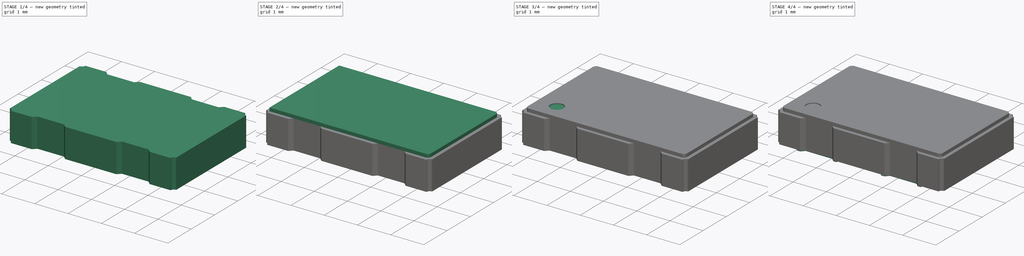
[diagram: build sequence overview — one tinted view per stage of 4, left to right]
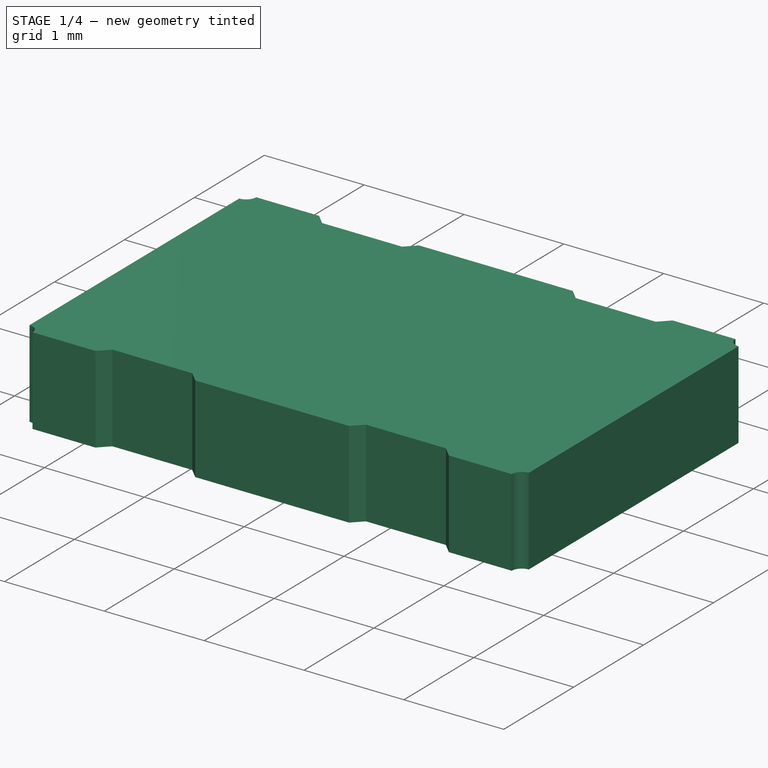
[diagram: stage 1 of 4 — iso view after this stage's code; geometry added in this stage tinted green]
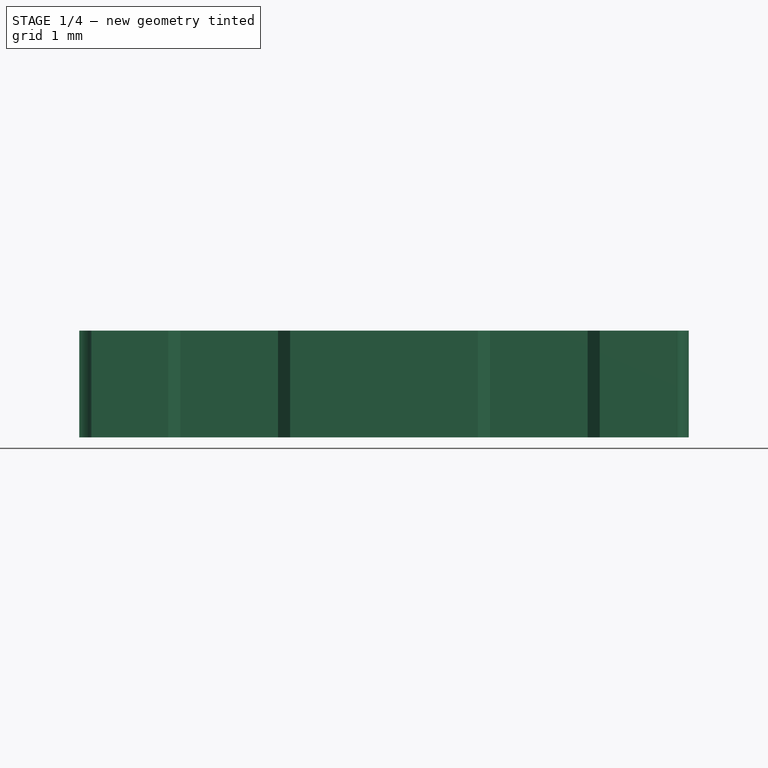
[diagram: stage 1 of 4 — front view after this stage's code; geometry added in this stage tinted green]
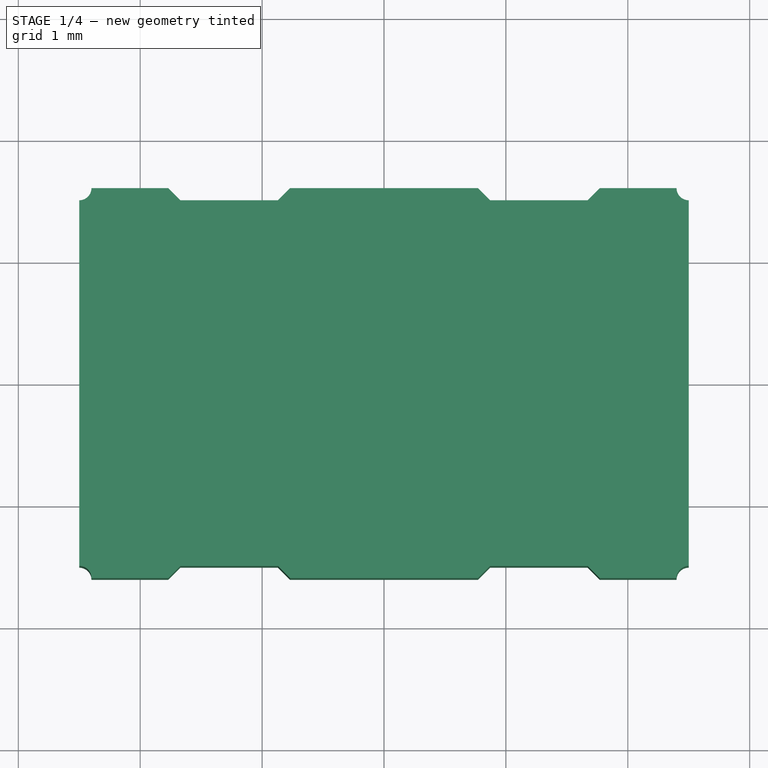
[diagram: stage 1 of 4 — top view after this stage's code; geometry added in this stage tinted green]
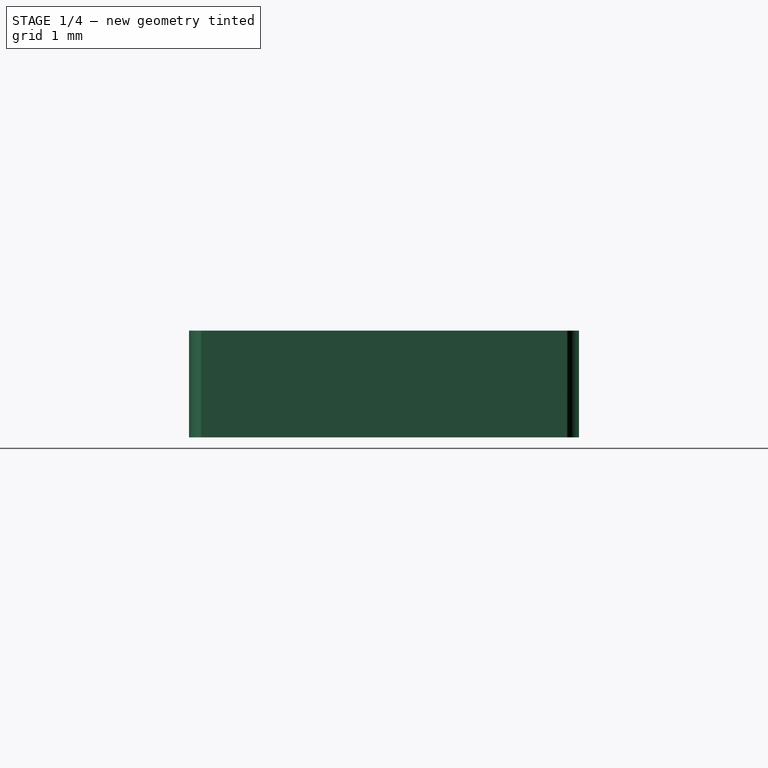
[diagram: stage 1 of 4 — right view after this stage's code; geometry added in this stage tinted green]
FCSTD DOCUMENT  (FreeCAD 0.15R4671 (Git))
Label: XO53
License: All rights reserved
LicenseURL: http://en.wikipedia.org/wiki/All_rights_reserved
objects: Sketcher::SketchObject×5, PartDesign::Pad×4, PartDesign::Fillet×4, PartDesign::Pocket×1, Part::MultiFuse×1
note: 20 computed .brp shape members not serialized (recipe doc carries the construction recipe); baked Part::Feature solids carry a one-line shape summary decoded from their .brp

FEATURE [PartDesign::Pad] Pad  label="Body"
  Length = 0.85
  Length2 = 100
  Placement = pos=(0,0,0.025) rot=(0,0,1;0rad)
  Sketch = -> Sketch
  Type = 0
FEATURE [Sketcher::SketchObject] Sketch006
  Placement = pos=(0,0,0.875) rot=(0,0,1;0rad)
  sketch-geometry (32):
    g0: LineSegment [constr] StartX=-2.5 StartY=1.6 StartZ=0 EndX=2.5 EndY=1.6 EndZ=0
    g1: LineSegment [constr] StartX=2.5 StartY=1.6 StartZ=0 EndX=2.5 EndY=-1.6 EndZ=0
    g2: LineSegment [constr] StartX=2.5 StartY=-1.6 StartZ=0 EndX=-2.5 EndY=-1.6 EndZ=0
    g3: LineSegment [constr] StartX=-2.5 StartY=-1.6 StartZ=0 EndX=-2.5 EndY=1.6 EndZ=0
    g4: LineSegment [constr] StartX=-2.5 StartY=-1.6 StartZ=0 EndX=-1.77 EndY=-1.6 EndZ=0
    g5: LineSegment StartX=-1.77 StartY=-1.6 StartZ=0 EndX=-1.67 EndY=-1.5 EndZ=0
    g6: LineSegment StartX=-1.67 StartY=-1.5 StartZ=0 EndX=-0.87 EndY=-1.5 EndZ=0
    g7: LineSegment StartX=-0.87 StartY=-1.5 StartZ=0 EndX=-0.77 EndY=-1.6 EndZ=0
    g8: LineSegment StartX=-0.77 StartY=-1.6 StartZ=0 EndX=0.77 EndY=-1.6 EndZ=0
    g9: LineSegment StartX=0.77 StartY=-1.6 StartZ=0 EndX=0.87 EndY=-1.5 EndZ=0
    g10: LineSegment StartX=0.87 StartY=-1.5 StartZ=0 EndX=1.67 EndY=-1.5 EndZ=0
    g11: LineSegment StartX=1.67 StartY=-1.5 StartZ=0 EndX=1.77 EndY=-1.6 EndZ=0
    g12: LineSegment [constr] StartX=1.77 StartY=-1.6 StartZ=0 EndX=2.5 EndY=-1.6 EndZ=0
    g13: LineSegment [constr] StartX=-2.5 StartY=1.6 StartZ=0 EndX=-1.77 EndY=1.6 EndZ=0
    g14: LineSegment StartX=-1.77 StartY=1.6 StartZ=0 EndX=-1.67 EndY=1.5 EndZ=0
    g15: LineSegment StartX=-1.67 StartY=1.5 StartZ=0 EndX=-0.87 EndY=1.5 EndZ=0
    g16: LineSegment StartX=-0.87 StartY=1.5 StartZ=0 EndX=-0.77 EndY=1.6 EndZ=0
    g17: LineSegment StartX=-0.77 StartY=1.6 StartZ=0 EndX=0.77 EndY=1.6 EndZ=0
    g18: LineSegment StartX=0.77 StartY=1.6 StartZ=0 EndX=0.87 EndY=1.5 EndZ=0
    g19: LineSegment StartX=0.87 StartY=1.5 StartZ=0 EndX=1.67 EndY=1.5 EndZ=0
    g20: LineSegment StartX=1.67 StartY=1.5 StartZ=0 EndX=1.77 EndY=1.6 EndZ=0
    g21: LineSegment [constr] StartX=1.77 StartY=1.6 StartZ=0 EndX=2.5 EndY=1.6 EndZ=0
    g22: ArcOfCircle CenterX=-2.5 CenterY=1.6 CenterZ=0 NormalX=0 NormalY=0 NormalZ=1 Radius=0.1 StartAngle=4.71239 EndAngle=6.28319
    g23: ArcOfCircle CenterX=2.5 CenterY=1.6 CenterZ=0 NormalX=0 NormalY=0 NormalZ=1 Radius=0.1 StartAngle=3.14159 EndAngle=4.71239
    g24: ArcOfCircle CenterX=2.5 CenterY=-1.6 CenterZ=0 NormalX=0 NormalY=0 NormalZ=1 Radius=0.1 StartAngle=1.5708 EndAngle=3.14159
    g25: ArcOfCircle CenterX=-2.5 CenterY=-1.6 CenterZ=0 NormalX=0 NormalY=0 NormalZ=1 Radius=0.1 StartAngle=0 EndAngle=1.5708
    g26: LineSegment StartX=-2.5 StartY=1.5 StartZ=0 EndX=-2.5 EndY=-1.5 EndZ=0
    g27: LineSegment StartX=2.5 StartY=-1.5 StartZ=0 EndX=2.5 EndY=1.5 EndZ=0
    g28: LineSegment StartX=-2.4 StartY=1.6 StartZ=0 EndX=-1.77 EndY=1.6 EndZ=0
    g29: LineSegment StartX=-2.4 StartY=-1.6 StartZ=0 EndX=-1.77 EndY=-1.6 EndZ=0
    g30: LineSegment StartX=1.77 StartY=-1.6 StartZ=0 EndX=2.4 EndY=-1.6 EndZ=0
    g31: LineSegment StartX=1.77 StartY=1.6 StartZ=0 EndX=2.4 EndY=1.6 EndZ=0
  constraints (92):
    c: Coincident(g0,g1)
    c: Coincident(g1,g2)
    c: Coincident(g2,g3)
    c: Coincident(g3,g0)
    c: Vertical(g1)
    c: Vertical(g3)
    c: Distance(g0) = 5
    c: Distance(g3) = 3.2
    c: DistanceY(g-1,g0) = 1.6
    c: DistanceX(g-2,g0) = 2.5
    c: Coincident(g2,g4)
    c: PointOnObject(g4,g2)
    c: Horizontal(g4)
    c: Coincident(g4,g5)
    c: Coincident(g5,g6)
    c: Horizontal(g6)
    c: Coincident(g6,g7)
    c: PointOnObject(g7,g2)
    c: Coincident(g7,g8)
    c: PointOnObject(g8,g2)
    c: Coincident(g8,g9)
    c: Coincident(g9,g10)
    c: Horizontal(g10)
    c: Coincident(g10,g11)
    c: PointOnObject(g11,g2)
    c: Coincident(g11,g12)
    c: Coincident(g12,g1)
    c: Equal(g5,g7)
    c: Equal(g7,g9)
    c: Equal(g9,g11)
    c: Equal(g6,g10)
    c: Angle(g5,g6) = 2.35619
    c: Distance(g4,g7) = 1
    c: Angle(g9,g10) = 2.35619
    c: Distance(g9,g2) = 0.1
    c: Distance(g7,g8) = 1.54
    c: DistanceX(g-2,g7) = -0.77
    c: Coincident(g0,g13)
    c: Horizontal(g13)
    c: Coincident(g13,g14)
    c: Coincident(g14,g15)
    c: Horizontal(g15)
    c: Coincident(g15,g16)
    c: PointOnObject(g16,g0)
    c: Coincident(g16,g17)
    c: PointOnObject(g17,g0)
    c: Horizontal(g17)
    c: Coincident(g17,g18)
    c: Coincident(g18,g19)
    c: Horizontal(g19)
    c: Coincident(g19,g20)
    c: PointOnObject(g20,g0)
    c: Coincident(g20,g21)
    c: Coincident(g21,g0)
    c: Equal(g13,g21)
    c: Equal(g14,g16)
    c: Equal(g16,g18)
    c: Equal(g18,g20)
    c: Angle(g15,g14) = 2.35619
    c: Angle(g19,g18) = 2.35619
    c: Equal(g15,g19)
    c: Distance(g14,g0) = 0.1
    c: Distance(g16,g17) = 1.54
    c: Coincident(g22,g0)
    c: PointOnObject(g22,g3)
    c: PointOnObject(g22,g0)
    c: Distance(g0,g22) = 0.1
    c: Coincident(g23,g0)
    c: PointOnObject(g23,g0)
    c: PointOnObject(g23,g1)
    c: Distance(g23,g0) = 0.1
    c: Coincident(g24,g1)
    c: PointOnObject(g24,g2)
    c: PointOnObject(g24,g1)
    c: Distance(g1,g24) = 0.1
    c: Coincident(g25,g2)
    c: PointOnObject(g25,g3)
    c: PointOnObject(g25,g2)
    c: Distance(g25,g2) = 0.1
    c: Distance(g13,g16) = 1
    c: Coincident(g26,g22)
    c: Coincident(g26,g25)
    c: Coincident(g27,g24)
    c: Coincident(g27,g23)
    c: Coincident(g28,g22)
    c: Coincident(g28,g13)
    c: Coincident(g29,g25)
    c: Coincident(g29,g4)
    c: Coincident(g30,g11)
    c: Coincident(g30,g24)
    c: Coincident(g31,g20)
    c: Coincident(g31,g23)
FEATURE [PartDesign::Pad] Pad004  label="BodyCover"
  Length = 0.025
  Length2 = 100
  Placement = pos=(0,0,0.875) rot=(0,0,1;0rad)
  Sketch = -> Sketch006
  Type = 0
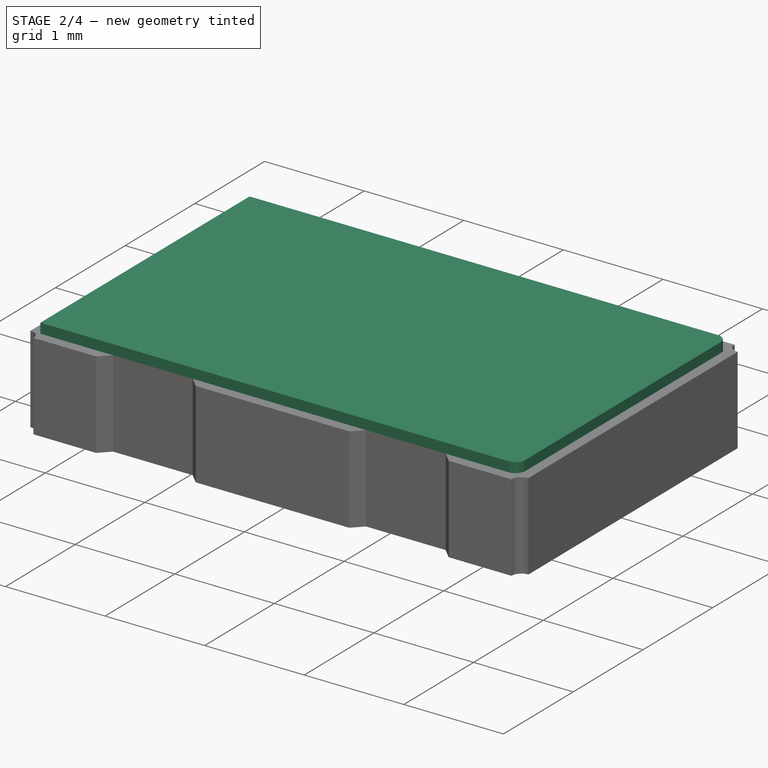
[diagram: stage 2 of 4 — iso view after this stage's code; geometry added in this stage tinted green]
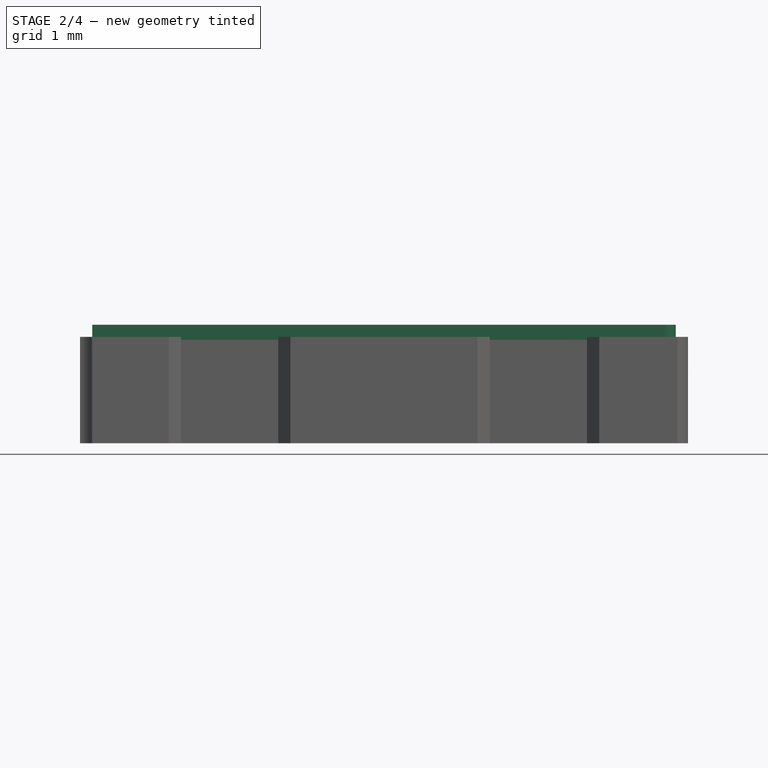
[diagram: stage 2 of 4 — front view after this stage's code; geometry added in this stage tinted green]
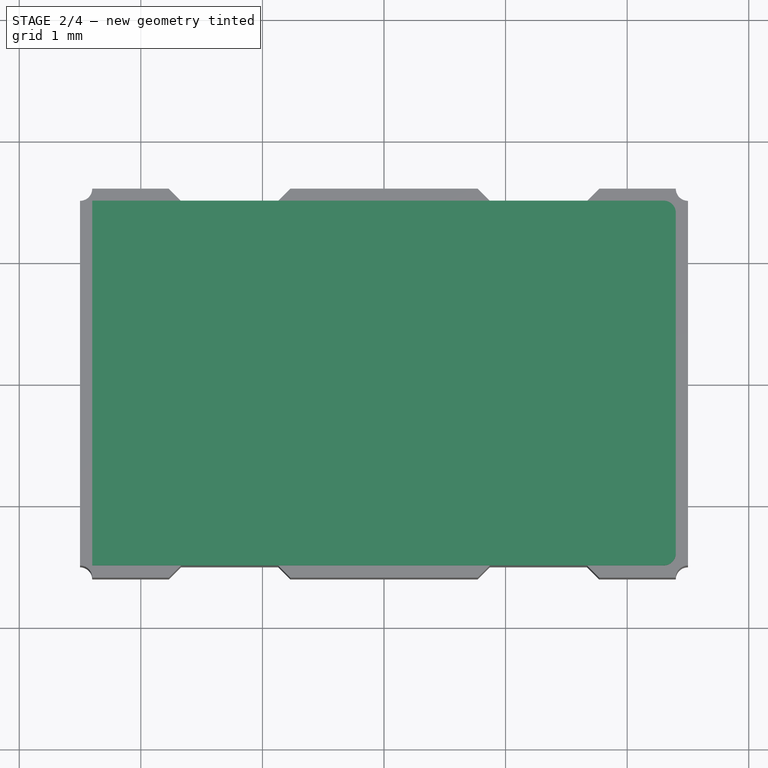
[diagram: stage 2 of 4 — top view after this stage's code; geometry added in this stage tinted green]
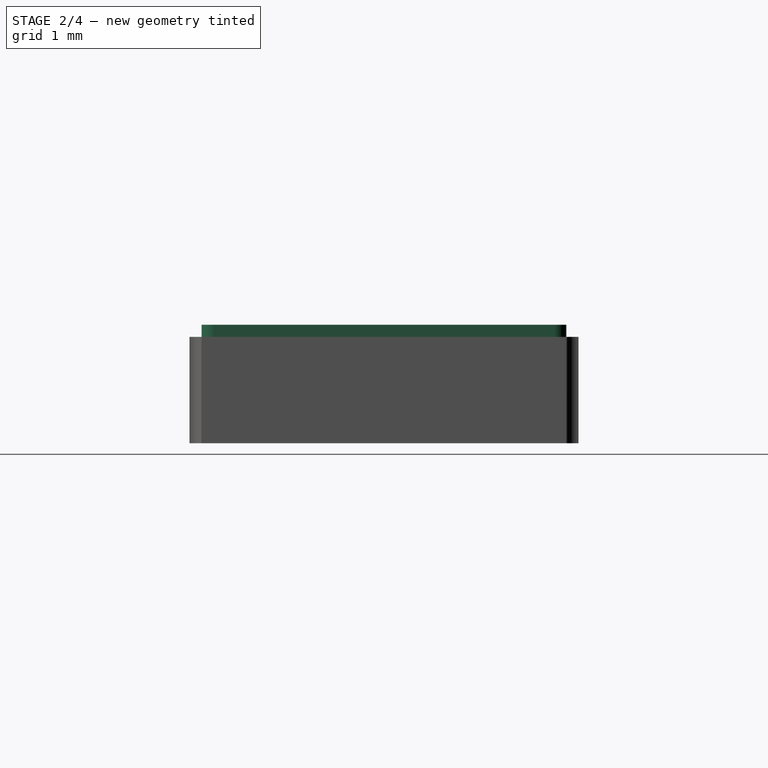
[diagram: stage 2 of 4 — right view after this stage's code; geometry added in this stage tinted green]
FEATURE [Sketcher::SketchObject] Sketch
  Placement = pos=(0,0,0.025) rot=(0,0,1;0rad)
  sketch-geometry (32):
    g0: LineSegment [constr] StartX=-2.5 StartY=1.6 StartZ=0 EndX=2.5 EndY=1.6 EndZ=0
    g1: LineSegment [constr] StartX=2.5 StartY=1.6 StartZ=0 EndX=2.5 EndY=-1.6 EndZ=0
    g2: LineSegment [constr] StartX=2.5 StartY=-1.6 StartZ=0 EndX=-2.5 EndY=-1.6 EndZ=0
    g3: LineSegment [constr] StartX=-2.5 StartY=-1.6 StartZ=0 EndX=-2.5 EndY=1.6 EndZ=0
    g4: LineSegment [constr] StartX=-2.5 StartY=-1.6 StartZ=0 EndX=-1.77 EndY=-1.6 EndZ=0
    g5: LineSegment StartX=-1.77 StartY=-1.6 StartZ=0 EndX=-1.67 EndY=-1.5 EndZ=0
    g6: LineSegment StartX=-1.67 StartY=-1.5 StartZ=0 EndX=-0.87 EndY=-1.5 EndZ=0
    g7: LineSegment StartX=-0.87 StartY=-1.5 StartZ=0 EndX=-0.77 EndY=-1.6 EndZ=0
    g8: LineSegment StartX=-0.77 StartY=-1.6 StartZ=0 EndX=0.77 EndY=-1.6 EndZ=0
    g9: LineSegment StartX=0.77 StartY=-1.6 StartZ=0 EndX=0.87 EndY=-1.5 EndZ=0
    g10: LineSegment StartX=0.87 StartY=-1.5 StartZ=0 EndX=1.67 EndY=-1.5 EndZ=0
    g11: LineSegment StartX=1.67 StartY=-1.5 StartZ=0 EndX=1.77 EndY=-1.6 EndZ=0
    g12: LineSegment [constr] StartX=1.77 StartY=-1.6 StartZ=0 EndX=2.5 EndY=-1.6 EndZ=0
    g13: LineSegment [constr] StartX=-2.5 StartY=1.6 StartZ=0 EndX=-1.77 EndY=1.6 EndZ=0
    g14: LineSegment StartX=-1.77 StartY=1.6 StartZ=0 EndX=-1.67 EndY=1.5 EndZ=0
    g15: LineSegment StartX=-1.67 StartY=1.5 StartZ=0 EndX=-0.87 EndY=1.5 EndZ=0
    g16: LineSegment StartX=-0.87 StartY=1.5 StartZ=0 EndX=-0.77 EndY=1.6 EndZ=0
    g17: LineSegment StartX=-0.77 StartY=1.6 StartZ=0 EndX=0.77 EndY=1.6 EndZ=0
    g18: LineSegment StartX=0.77 StartY=1.6 StartZ=0 EndX=0.87 EndY=1.5 EndZ=0
    g19: LineSegment StartX=0.87 StartY=1.5 StartZ=0 EndX=1.67 EndY=1.5 EndZ=0
    g20: LineSegment StartX=1.67 StartY=1.5 StartZ=0 EndX=1.77 EndY=1.6 EndZ=0
    g21: LineSegment [constr] StartX=1.77 StartY=1.6 StartZ=0 EndX=2.5 EndY=1.6 EndZ=0
    g22: ArcOfCircle CenterX=-2.5 CenterY=1.6 CenterZ=0 NormalX=0 NormalY=0 NormalZ=1 Radius=0.1 StartAngle=4.71239 EndAngle=6.28319
    g23: ArcOfCircle CenterX=2.5 CenterY=1.6 CenterZ=0 NormalX=0 NormalY=0 NormalZ=1 Radius=0.1 StartAngle=3.14159 EndAngle=4.71239
    g24: ArcOfCircle CenterX=2.5 CenterY=-1.6 CenterZ=0 NormalX=0 NormalY=0 NormalZ=1 Radius=0.1 StartAngle=1.5708 EndAngle=3.14159
    g25: ArcOfCircle CenterX=-2.5 CenterY=-1.6 CenterZ=0 NormalX=0 NormalY=0 NormalZ=1 Radius=0.1 StartAngle=0 EndAngle=1.5708
    g26: LineSegment StartX=-2.5 StartY=1.5 StartZ=0 EndX=-2.5 EndY=-1.5 EndZ=0
    g27: LineSegment StartX=2.5 StartY=-1.5 StartZ=0 EndX=2.5 EndY=1.5 EndZ=0
    g28: LineSegment StartX=-2.4 StartY=1.6 StartZ=0 EndX=-1.77 EndY=1.6 EndZ=0
    g29: LineSegment StartX=-2.4 StartY=-1.6 StartZ=0 EndX=-1.77 EndY=-1.6 EndZ=0
    g30: LineSegment StartX=1.77 StartY=-1.6 StartZ=0 EndX=2.4 EndY=-1.6 EndZ=0
    g31: LineSegment StartX=1.77 StartY=1.6 StartZ=0 EndX=2.4 EndY=1.6 EndZ=0
  constraints (92):
    c: Coincident(g0,g1)
    c: Coincident(g1,g2)
    c: Coincident(g2,g3)
    c: Coincident(g3,g0)
    c: Vertical(g1)
    c: Vertical(g3)
    c: Distance(g0) = 5
    c: Distance(g3) = 3.2
    c: DistanceY(g-1,g0) = 1.6
    c: DistanceX(g-2,g0) = 2.5
    c: Coincident(g2,g4)
    c: PointOnObject(g4,g2)
    c: Horizontal(g4)
    c: Coincident(g4,g5)
    c: Coincident(g5,g6)
    c: Horizontal(g6)
    c: Coincident(g6,g7)
    c: PointOnObject(g7,g2)
    c: Coincident(g7,g8)
    c: PointOnObject(g8,g2)
    c: Coincident(g8,g9)
    c: Coincident(g9,g10)
    c: Horizontal(g10)
    c: Coincident(g10,g11)
    c: PointOnObject(g11,g2)
    c: Coincident(g11,g12)
    c: Coincident(g12,g1)
    c: Equal(g5,g7)
    c: Equal(g7,g9)
    c: Equal(g9,g11)
    c: Equal(g6,g10)
    c: Angle(g5,g6) = 2.35619
    c: Distance(g4,g7) = 1
    c: Angle(g9,g10) = 2.35619
    c: Distance(g9,g2) = 0.1
    c: Distance(g7,g8) = 1.54
    c: DistanceX(g-2,g7) = -0.77
    c: Coincident(g0,g13)
    c: Horizontal(g13)
    c: Coincident(g13,g14)
    c: Coincident(g14,g15)
    c: Horizontal(g15)
    c: Coincident(g15,g16)
    c: PointOnObject(g16,g0)
    c: Coincident(g16,g17)
    c: PointOnObject(g17,g0)
    c: Horizontal(g17)
    c: Coincident(g17,g18)
    c: Coincident(g18,g19)
    c: Horizontal(g19)
    c: Coincident(g19,g20)
    c: PointOnObject(g20,g0)
    c: Coincident(g20,g21)
    c: Coincident(g21,g0)
    c: Equal(g13,g21)
    c: Equal(g14,g16)
    c: Equal(g16,g18)
    c: Equal(g18,g20)
    c: Angle(g15,g14) = 2.35619
    c: Angle(g19,g18) = 2.35619
    c: Equal(g15,g19)
    c: Distance(g14,g0) = 0.1
    c: Distance(g16,g17) = 1.54
    c: Coincident(g22,g0)
    c: PointOnObject(g22,g3)
    c: PointOnObject(g22,g0)
    c: Distance(g0,g22) = 0.1
    c: Coincident(g23,g0)
    c: PointOnObject(g23,g0)
    c: PointOnObject(g23,g1)
    c: Distance(g23,g0) = 0.1
    c: Coincident(g24,g1)
    c: PointOnObject(g24,g2)
    c: PointOnObject(g24,g1)
    c: Distance(g1,g24) = 0.1
    c: Coincident(g25,g2)
    c: PointOnObject(g25,g3)
    c: PointOnObject(g25,g2)
    c: Distance(g25,g2) = 0.1
    c: Distance(g13,g16) = 1
    c: Coincident(g26,g22)
    c: Coincident(g26,g25)
    c: Coincident(g27,g24)
    c: Coincident(g27,g23)
    c: Coincident(g28,g22)
    c: Coincident(g28,g13)
    c: Coincident(g29,g25)
    c: Coincident(g29,g4)
    c: Coincident(g30,g11)
    c: Coincident(g30,g24)
    c: Coincident(g31,g20)
    c: Coincident(g31,g23)
FEATURE [Sketcher::SketchObject] Sketch002
  Placement = pos=(0,0,0.875) rot=(0,0,1;0rad)
  sketch-geometry (4):
    g0: LineSegment StartX=-2.4 StartY=1.5 StartZ=0 EndX=2.4 EndY=1.5 EndZ=0
    g1: LineSegment StartX=2.4 StartY=1.5 StartZ=0 EndX=2.4 EndY=-1.5 EndZ=0
    g2: LineSegment StartX=2.4 StartY=-1.5 StartZ=0 EndX=-2.4 EndY=-1.5 EndZ=0
    g3: LineSegment StartX=-2.4 StartY=-1.5 StartZ=0 EndX=-2.4 EndY=1.5 EndZ=0
  constraints (12):
    c: Coincident(g0,g1)
    c: Coincident(g1,g2)
    c: Coincident(g2,g3)
    c: Coincident(g3,g0)
    c: Horizontal(g0)
    c: Horizontal(g2)
    c: Vertical(g1)
    c: Vertical(g3)
    c: Distance(g0) = 4.8
    c: Distance(g3) = 3
    c: DistanceY(g-1,g0) = 1.5
    c: DistanceX(g-2,g2) = -2.4
FEATURE [PartDesign::Pad] Pad001  label="CapBase"
  Length = 0.125
  Length2 = 100
  Placement = pos=(0,0,0.875) rot=(0,0,1;0rad)
  Sketch = -> Sketch002
  Type = 0
FEATURE [PartDesign::Fillet] Fillet
  Base = -> Pad001 [Edge5]
  Placement = pos=(0,0,0.875) rot=(0,0,1;0rad)
  Radius = 0.1
FEATURE [PartDesign::Fillet] Fillet001
  Base = -> Fillet [Edge3]
  Placement = pos=(0,0,0.875) rot=(0,0,1;0rad)
  Radius = 0.1
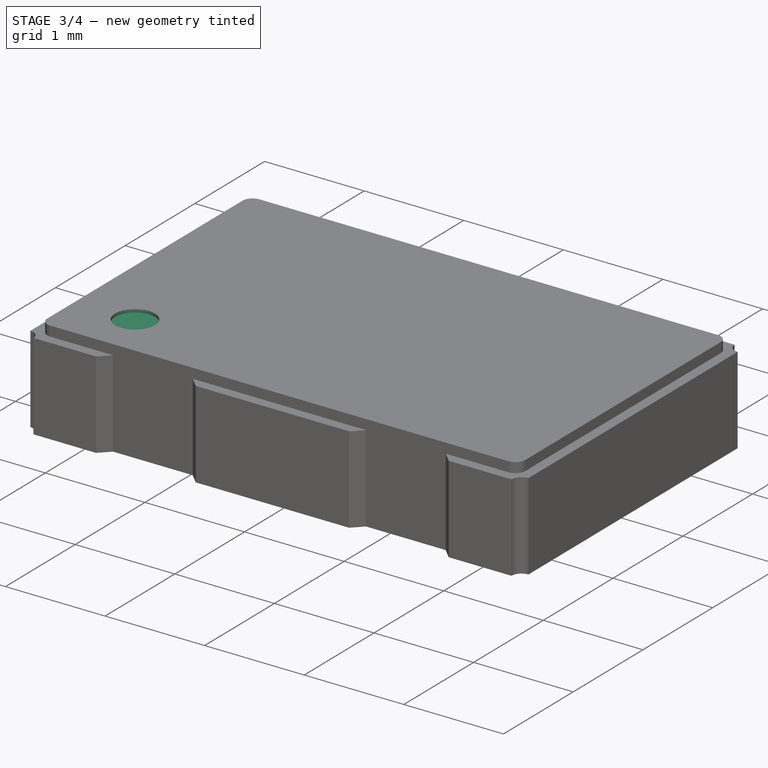
[diagram: stage 3 of 4 — iso view after this stage's code; geometry added in this stage tinted green]
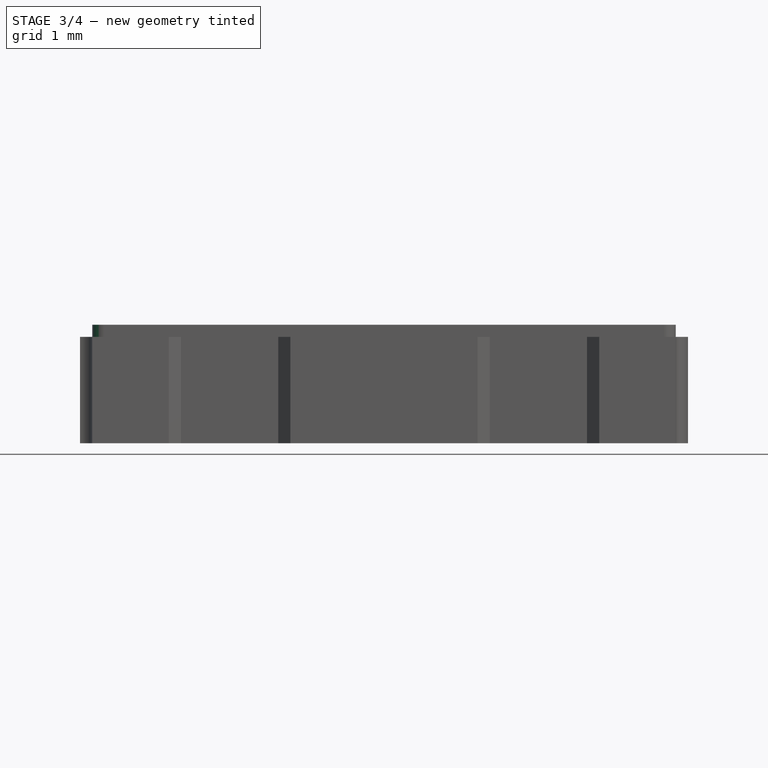
[diagram: stage 3 of 4 — front view after this stage's code; geometry added in this stage tinted green]
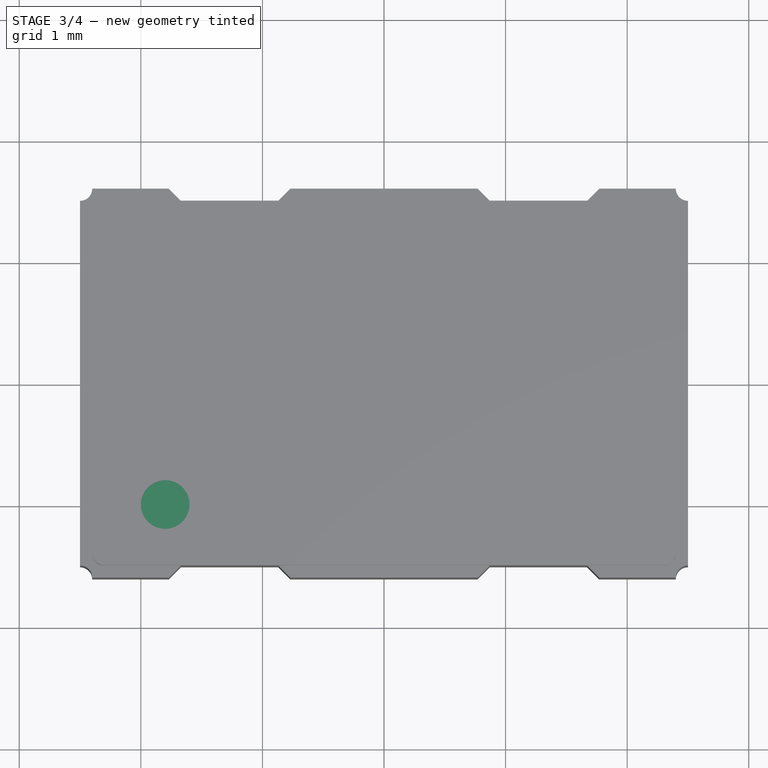
[diagram: stage 3 of 4 — top view after this stage's code; geometry added in this stage tinted green]
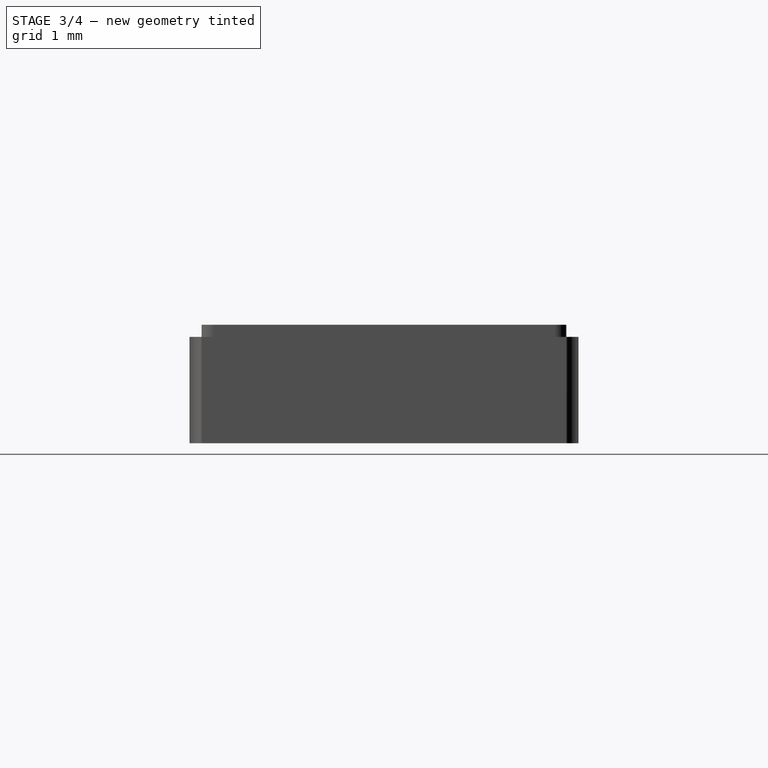
[diagram: stage 3 of 4 — right view after this stage's code; geometry added in this stage tinted green]
FEATURE [PartDesign::Fillet] Fillet002
  Base = -> Fillet001 [Edge18]
  Placement = pos=(0,0,0.875) rot=(0,0,1;0rad)
  Radius = 0.1
FEATURE [PartDesign::Fillet] Fillet003  label="Cap"
  Base = -> Fillet002 [Edge15]
  Placement = pos=(0,0,0.875) rot=(0,0,1;0rad)
  Radius = 0.1
FEATURE [Sketcher::SketchObject] Sketch005
  Placement = pos=(0,0,1) rot=(0,0,1;0rad)
  Support = -> Fillet003 [Face10]
  sketch-geometry (1):
    g0: Circle CenterX=-1.8 CenterY=-1 CenterZ=0 NormalX=0 NormalY=0 NormalZ=1 Radius=0.2
  constraints (3):
    c: Radius(g0) = 0.2
    c: DistanceY(g-1,g0) = -1
    c: DistanceX(g-2,g0) = -1.8
FEATURE [PartDesign::Pocket] Pocket  label="CapMark"
  Length = 0.03
  Placement = pos=(0,0,0.875) rot=(0,0,1;0rad)
  Sketch = -> Sketch005
  Type = 0
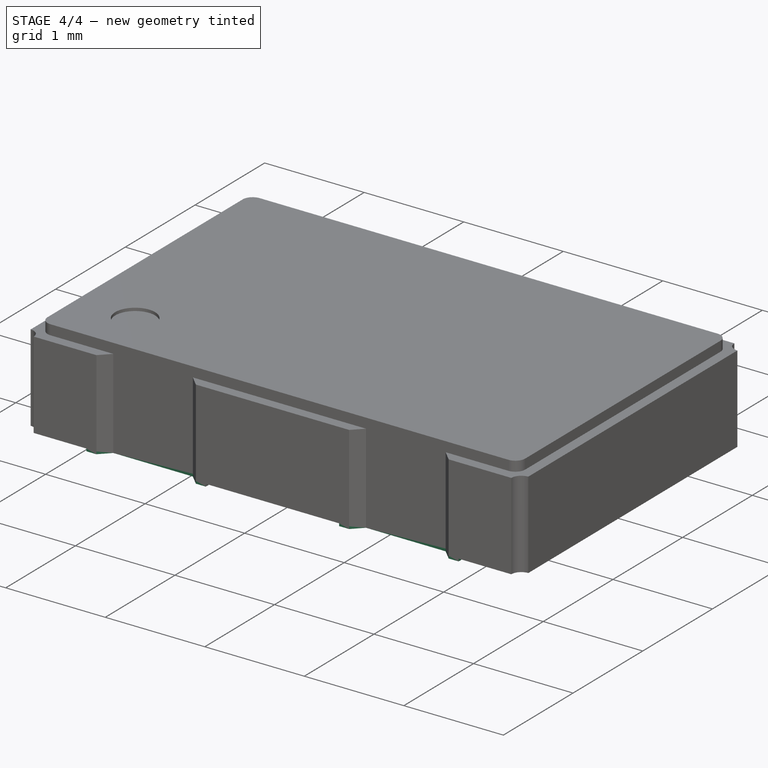
[diagram: stage 4 of 4 — iso view after this stage's code; geometry added in this stage tinted green]
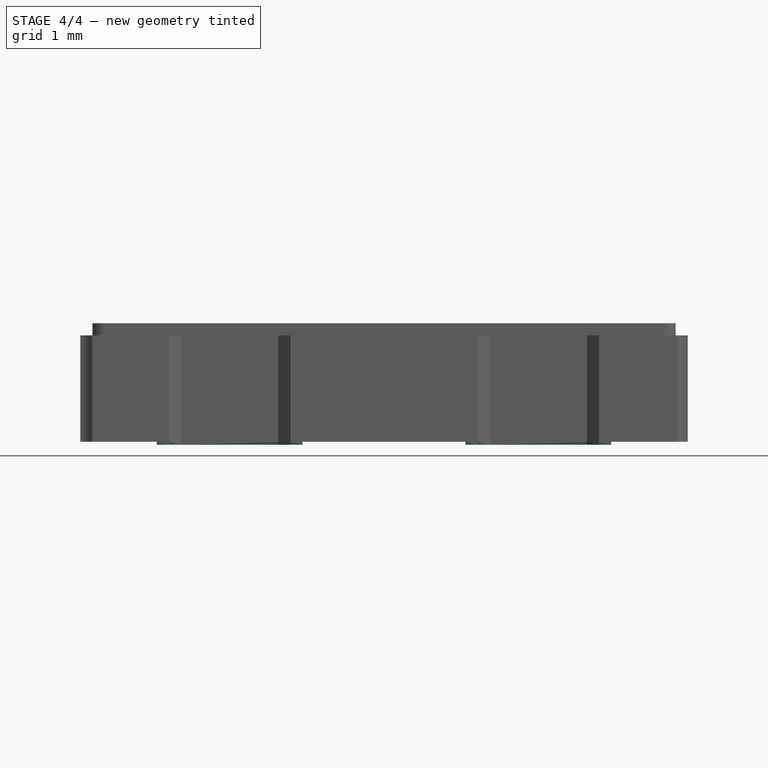
[diagram: stage 4 of 4 — front view after this stage's code; geometry added in this stage tinted green]
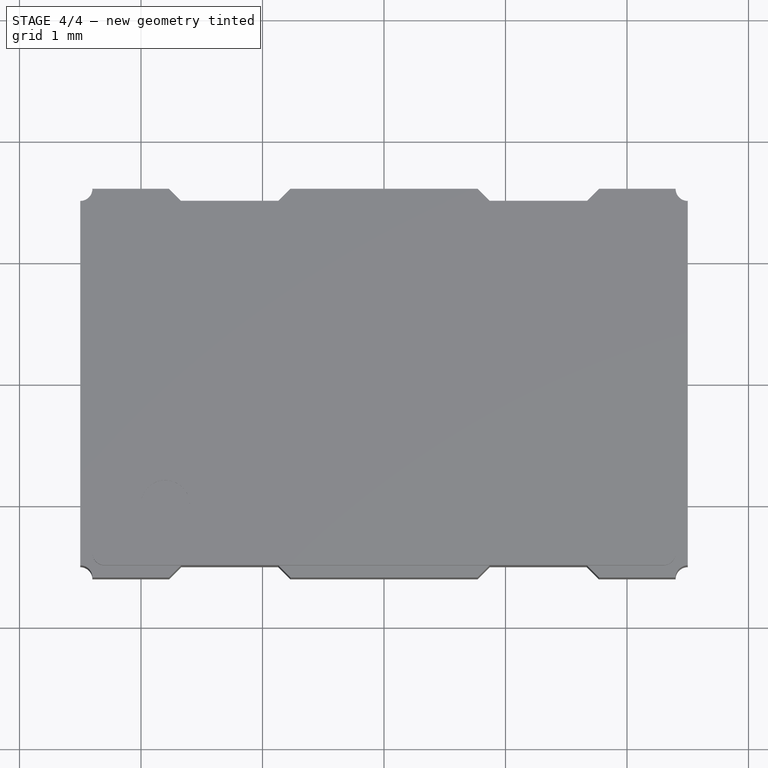
[diagram: stage 4 of 4 — top view after this stage's code; geometry added in this stage tinted green]
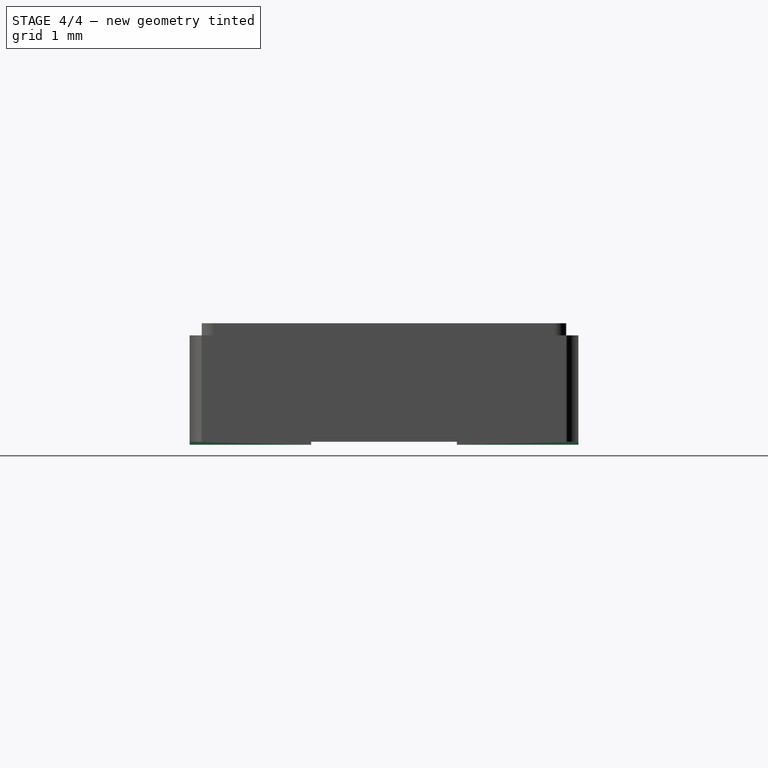
[diagram: stage 4 of 4 — right view after this stage's code; geometry added in this stage tinted green]
FEATURE [Sketcher::SketchObject] Sketch004
  sketch-geometry (35):
    g0: LineSegment StartX=-0.67 StartY=1.6 StartZ=0 EndX=-0.67 EndY=0.6 EndZ=0
    g1: LineSegment StartX=-0.67 StartY=0.6 StartZ=0 EndX=-1.87 EndY=0.6 EndZ=0
    g2: LineSegment StartX=-1.87 StartY=0.6 StartZ=0 EndX=-1.87 EndY=1.6 EndZ=0
    g3: LineSegment [constr] StartX=-3.30498 StartY=1.6 StartZ=0 EndX=3.55191 EndY=1.6 EndZ=0
    g4: LineSegment StartX=1.87 StartY=1.6 StartZ=0 EndX=1.87 EndY=0.6 EndZ=0
    g5: LineSegment StartX=1.87 StartY=0.6 StartZ=0 EndX=0.67 EndY=0.6 EndZ=0
    g6: LineSegment StartX=0.67 StartY=0.6 StartZ=0 EndX=0.67 EndY=1.6 EndZ=0
    g7: LineSegment [constr] StartX=-3.31448 StartY=-1.6 StartZ=0 EndX=3.79883 EndY=-1.6 EndZ=0
    g8: LineSegment StartX=1.87 StartY=-1.6 StartZ=0 EndX=1.87 EndY=-0.6 EndZ=0
    g9: LineSegment StartX=1.87 StartY=-0.6 StartZ=0 EndX=0.67 EndY=-0.6 EndZ=0
    g10: LineSegment StartX=0.67 StartY=-0.6 StartZ=0 EndX=0.67 EndY=-1.6 EndZ=0
    g11: LineSegment StartX=-1.87 StartY=-1.6 StartZ=0 EndX=-1.87 EndY=-0.6 EndZ=0
    g12: LineSegment StartX=-1.87 StartY=-0.6 StartZ=0 EndX=-0.952843 EndY=-0.6 EndZ=0
    g13: LineSegment StartX=-0.952843 StartY=-0.6 StartZ=0 EndX=-0.67 EndY=-0.882843 EndZ=0
    g14: LineSegment StartX=-0.67 StartY=-0.882843 StartZ=0 EndX=-0.67 EndY=-1.6 EndZ=0
    g15: LineSegment StartX=-1.87 StartY=-1.6 StartZ=0 EndX=-1.77 EndY=-1.6 EndZ=0
    g16: LineSegment StartX=-1.77 StartY=-1.6 StartZ=0 EndX=-1.67 EndY=-1.5 EndZ=0
    g17: LineSegment StartX=-1.67 StartY=-1.5 StartZ=0 EndX=-0.87 EndY=-1.5 EndZ=0
    g18: LineSegment StartX=-0.87 StartY=-1.5 StartZ=0 EndX=-0.77 EndY=-1.6 EndZ=0
    g19: LineSegment StartX=-0.77 StartY=-1.6 StartZ=0 EndX=-0.67 EndY=-1.6 EndZ=0
    g20: LineSegment StartX=0.67 StartY=-1.6 StartZ=0 EndX=0.77 EndY=-1.6 EndZ=0
    g21: LineSegment StartX=0.77 StartY=-1.6 StartZ=0 EndX=0.87 EndY=-1.5 EndZ=0
    g22: LineSegment StartX=0.87 StartY=-1.5 StartZ=0 EndX=1.67 EndY=-1.5 EndZ=0
    g23: LineSegment StartX=1.67 StartY=-1.5 StartZ=0 EndX=1.77 EndY=-1.6 EndZ=0
    g24: LineSegment StartX=1.77 StartY=-1.6 StartZ=0 EndX=1.87 EndY=-1.6 EndZ=0
    g25: LineSegment StartX=0.67 StartY=1.6 StartZ=0 EndX=0.77 EndY=1.6 EndZ=0
    g26: LineSegment StartX=0.77 StartY=1.6 StartZ=0 EndX=0.87 EndY=1.5 EndZ=0
    g27: LineSegment StartX=0.87 StartY=1.5 StartZ=0 EndX=1.67 EndY=1.5 EndZ=0
    g28: LineSegment StartX=1.67 StartY=1.5 StartZ=0 EndX=1.77 EndY=1.6 EndZ=0
    g29: LineSegment StartX=1.77 StartY=1.6 StartZ=0 EndX=1.87 EndY=1.6 EndZ=0
    g30: LineSegment StartX=-1.87 StartY=1.6 StartZ=0 EndX=-1.77 EndY=1.6 EndZ=0
    g31: LineSegment StartX=-1.77 StartY=1.6 StartZ=0 EndX=-1.67 EndY=1.5 EndZ=0
    g32: LineSegment StartX=-1.67 StartY=1.5 StartZ=0 EndX=-0.87 EndY=1.5 EndZ=0
    g33: LineSegment StartX=-0.87 StartY=1.5 StartZ=0 EndX=-0.77 EndY=1.6 EndZ=0
    g34: LineSegment StartX=-0.77 StartY=1.6 StartZ=0 EndX=-0.67 EndY=1.6 EndZ=0
  constraints (103):
    c: Coincident(g0,g1)
    c: Coincident(g1,g2)
    c: Horizontal(g1)
    c: Vertical(g0)
    c: Vertical(g2)
    c: Distance(g1) = 1.2
    c: Distance(g2) = 1
    c: Horizontal(g3)
    c: DistanceY(g-1,g3) = 1.6
    c: PointOnObject(g0,g3)
    c: Coincident(g4,g5)
    c: Coincident(g5,g6)
    c: Horizontal(g5)
    c: Vertical(g4)
    c: Vertical(g6)
    c: PointOnObject(g6,g3)
    c: Equal(g0,g6)
    c: Equal(g5,g1)
    c: Distance(g0,g5) = 1.34
    c: DistanceX(g-2,g0) = -0.67
    c: DistanceY(g-1,g7) = -1.6
    c: Coincident(g8,g9)
    c: Coincident(g9,g10)
    c: Horizontal(g9)
    c: Vertical(g8)
    c: Vertical(g10)
    c: PointOnObject(g10,g7)
    c: Equal(g9,g5)
    c: Equal(g8,g4)
    c: PointOnObject(g11,g7)
    c: Vertical(g11)
    c: Coincident(g11,g12)
    c: Horizontal(g12)
    c: Coincident(g12,g13)
    c: Coincident(g13,g14)
    c: PointOnObject(g14,g7)
    c: Vertical(g14)
    c: Equal(g11,g10)
    c: Angle(g12,g13) = 2.35619
    c: Distance(g14,g10) = 1.34
    c: DistanceX(g-2,g9) = 0.67
    c: Distance(g13) = 0.4
    c: Coincident(g11,g15)
    c: PointOnObject(g15,g7)
    c: Horizontal(g15)
    c: Coincident(g15,g16)
    c: Coincident(g16,g17)
    c: Horizontal(g17)
    c: Coincident(g17,g18)
    c: PointOnObject(g18,g7)
    c: Coincident(g18,g19)
    c: Coincident(g19,g14)
    c: Equal(g15,g19)
    c: Equal(g16,g18)
    c: Distance(g16,g7) = 0.1
    c: Angle(g16,g17) = 2.35619
    c: Coincident(g10,g20)
    c: Horizontal(g20)
    c: Coincident(g20,g21)
    c: Coincident(g21,g22)
    c: Horizontal(g22)
    c: Coincident(g22,g23)
    c: PointOnObject(g23,g7)
    c: Coincident(g23,g24)
    c: Coincident(g24,g8)
    c: Horizontal(g24)
    c: Equal(g20,g24)
    c: Equal(g21,g23)
    c: Angle(g21,g22) = 2.35619
    c: Coincident(g6,g25)
    c: PointOnObject(g25,g3)
    c: Coincident(g25,g26)
    c: Coincident(g26,g27)
    c: Horizontal(g27)
    c: Coincident(g27,g28)
    c: PointOnObject(g28,g3)
    c: Coincident(g28,g29)
    c: Coincident(g29,g4)
    c: Horizontal(g29)
    c: Distance(g26,g3) = 0.1
    c: Equal(g26,g28)
    c: Equal(g25,g29)
    c: Angle(g27,g26) = 2.35619
    c: Distance(g25,g28) = 1
    c: Distance(g20,g23) = 1
    c: Distance(g21,g7) = 0.1
    c: Distance(g11,g14) = 1.2
    c: Distance(g15,g18) = 1
    c: Coincident(g2,g30)
    c: PointOnObject(g30,g3)
    c: Horizontal(g30)
    c: Coincident(g30,g31)
    c: Coincident(g31,g32)
    c: Horizontal(g32)
    c: Coincident(g32,g33)
    c: PointOnObject(g33,g3)
    c: Coincident(g33,g34)
    c: Coincident(g34,g0)
    c: Equal(g30,g34)
    c: Equal(g31,g33)
    c: Distance(g31,g3) = 0.1
    c: Distance(g30,g33) = 1
    c: Angle(g32,g31) = 2.35619
FEATURE [PartDesign::Pad] Pad003  label="Pads"
  Length = 0.75
  Length2 = 100
  Sketch = -> Sketch004
  Type = 0
FEATURE [Part::MultiFuse] Fusion  label="Oscillator_SMD_EuroQuartz_XO53-4Pin_5.0x3.2mm"
  Shapes = -> [Pocket,Pad004,Pad,Pad003]
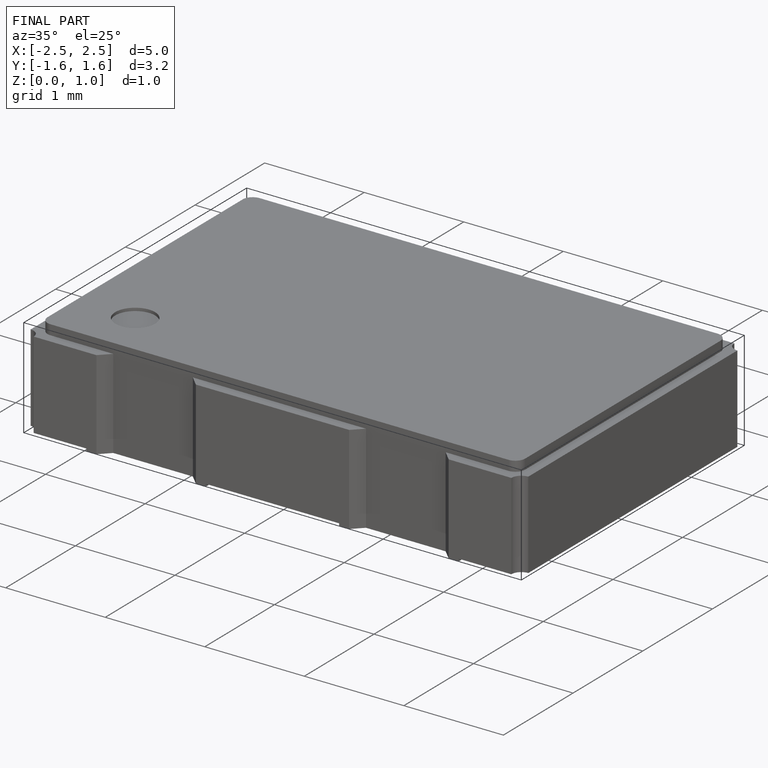
[diagram: finished part — iso view with bounding-box wireframe]
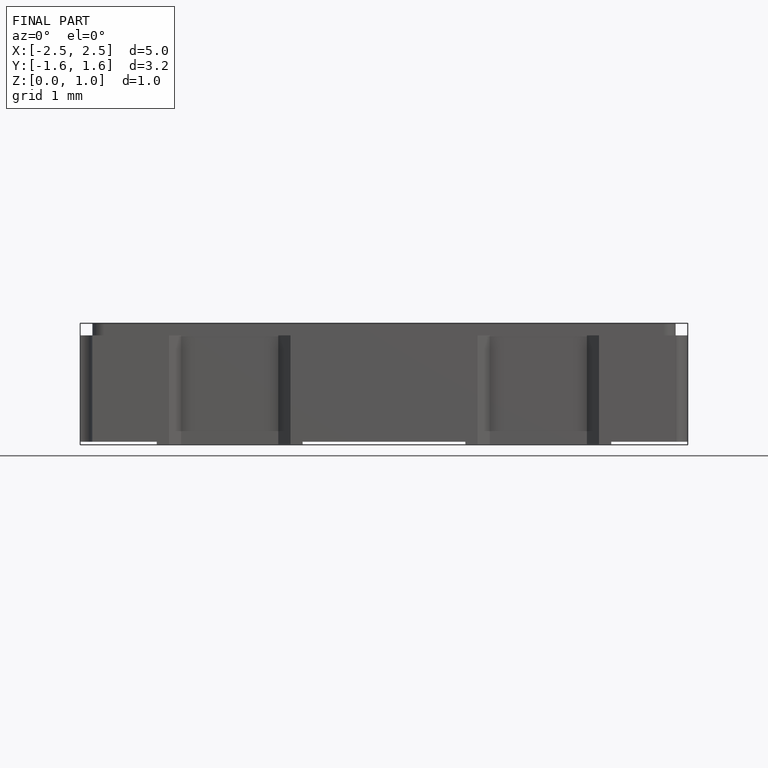
[diagram: finished part — front view with bounding-box wireframe]
